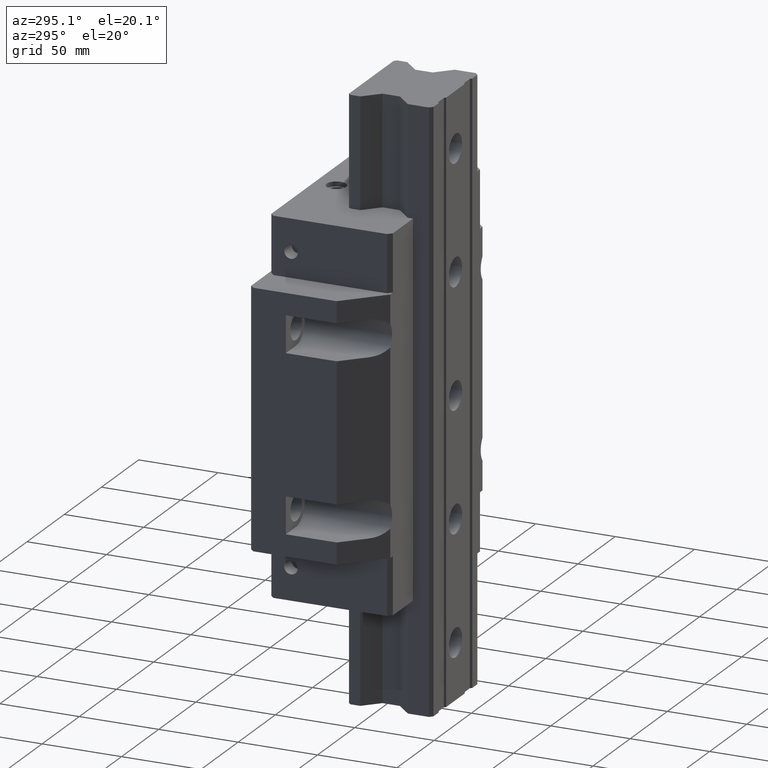
[diagram: clean part render]
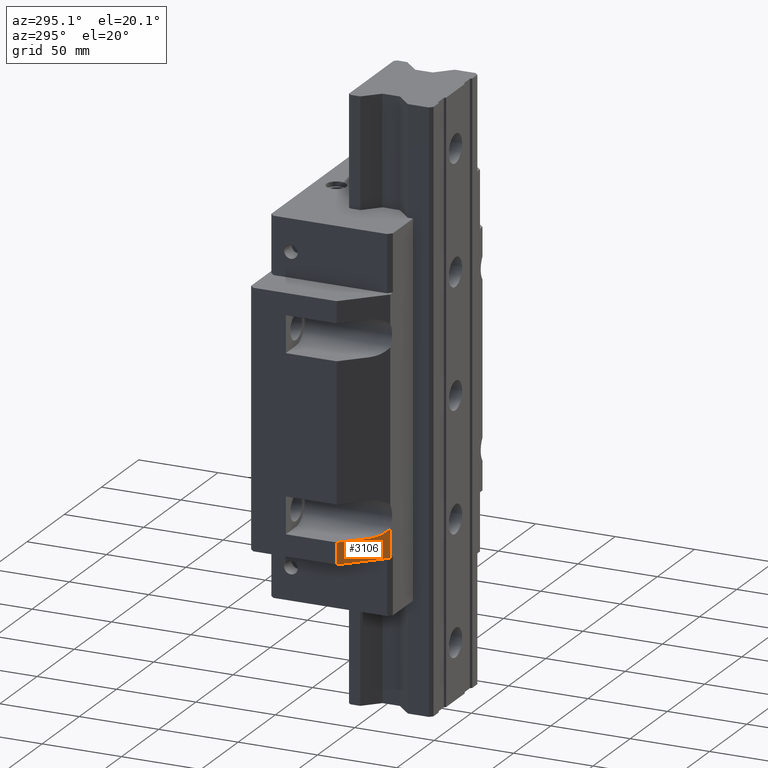
[diagram: same view with one face highlighted and labeled with its STEP entity id]
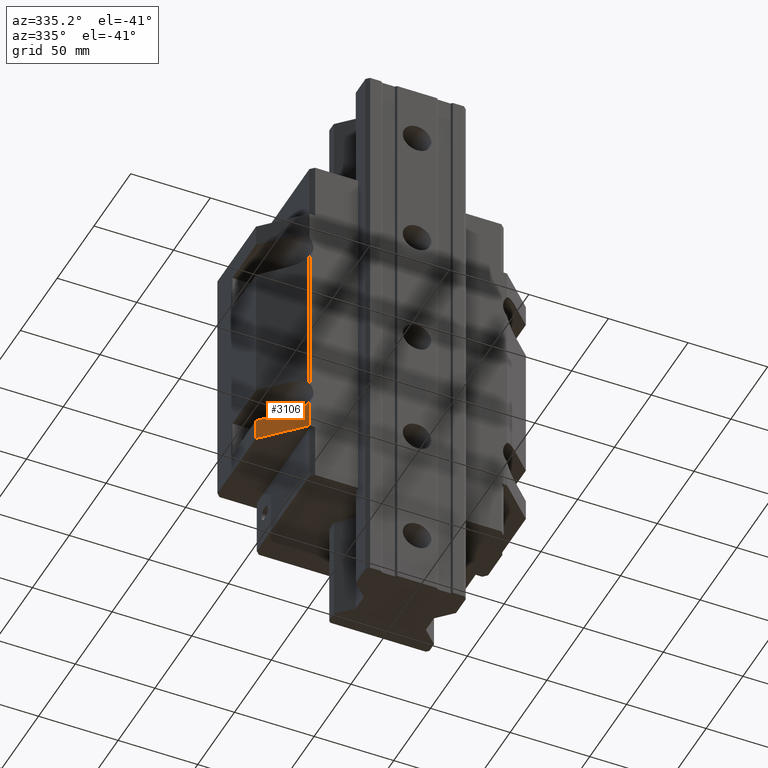
[diagram: same view with one face highlighted and labeled with its STEP entity id]
A machine part, auxiliary view. The second image highlights one B-rep face of the part: STEP entity #3106.
A second angle (auxiliary view) of the same face is appended — the face is thin or edge-on in the first view.
In plain terms, the highlighted planar face has unit normal (-0.7071, -0.7071, 0).
Its self-contained STEP definition (entity closure, byte-faithful):
#169=DIRECTION('',(7.071067811866E-1,-7.071067811865E-1,0.E0));
#170=VECTOR('',#169,3.252691193458E1);
#171=CARTESIAN_POINT('',(-8.500006E1,-5.4999992E1,-8.E1));
#172=LINE('',#171,#170);
#843=DIRECTION('',(-4.102115587443E-14,0.E0,1.E0));
#844=VECTOR('',#843,1.784101403854E1);
#845=CARTESIAN_POINT('',(-6.200006E1,-7.7999992E1,-8.E1));
#846=LINE('',#845,#844);
#881=DIRECTION('',(0.E0,-4.842217162217E-14,1.E0));
#882=VECTOR('',#881,1.35E1);
#883=CARTESIAN_POINT('',(-8.500006E1,-5.4999992E1,-8.E1));
#884=LINE('',#883,#882);
#891=CARTESIAN_POINT('',(-6.200006E1,-7.7999992E1,-6.215898596146E1));
#892=CARTESIAN_POINT('',(-6.326651662230E1,-7.673353537770E1,
-6.375111558354E1));
#893=CARTESIAN_POINT('',(-6.611164746775E1,-7.388840453225E1,
-6.577408161649E1));
#894=CARTESIAN_POINT('',(-6.930549395311E1,-7.069455804688E1,-6.65E1));
#895=CARTESIAN_POINT('',(-7.1E1,-6.9000052E1,-6.65E1));
#988=DIRECTION('',(-7.071067811866E-1,7.071067811865E-1,0.E0));
#989=VECTOR('',#988,1.979907472604E1);
#990=CARTESIAN_POINT('',(-7.1E1,-6.9000052E1,-6.65E1));
#991=LINE('',#990,#989);
#1651=CARTESIAN_POINT('',(-8.500006E1,-5.4999992E1,-8.E1));
#1652=VERTEX_POINT('',#1651);
#1653=CARTESIAN_POINT('',(-6.200006E1,-7.7999992E1,-8.E1));
#1654=VERTEX_POINT('',#1653);
#1719=CARTESIAN_POINT('',(-6.200006E1,-7.7999992E1,-6.215898596146E1));
#1720=VERTEX_POINT('',#1719);
#1957=VERTEX_POINT('',#895);
#1962=CARTESIAN_POINT('',(-8.500006E1,-5.4999992E1,-6.65E1));
#1963=VERTEX_POINT('',#1962);
#3091=CARTESIAN_POINT('',(-8.500006E1,-5.4999992E1,-8.E1));
#3092=DIRECTION('',(-7.071067811865E-1,-7.071067811866E-1,0.E0));
#3093=DIRECTION('',(7.071067811866E-1,-7.071067811865E-1,0.E0));
#3094=AXIS2_PLACEMENT_3D('',#3091,#3092,#3093);
#3095=PLANE('',#3094);
#3097=ORIENTED_EDGE('',*,*,#3096,.F.);
#3098=ORIENTED_EDGE('',*,*,#3063,.F.);
#3099=ORIENTED_EDGE('',*,*,#2232,.F.);
#3101=ORIENTED_EDGE('',*,*,#3100,.T.);
#3103=ORIENTED_EDGE('',*,*,#3102,.F.);
#3104=EDGE_LOOP('',(#3097,#3098,#3099,#3101,#3103));
#3105=FACE_OUTER_BOUND('',#3104,.F.);
#3106=ADVANCED_FACE('',(#3105),#3095,.T.);
#896=B_SPLINE_CURVE_WITH_KNOTS('',3,(#891,#892,#893,#894,#895),.UNSPECIFIED.,
.F.,.F.,(4,1,4),(0.E0,5.E-1,1.E0),.UNSPECIFIED.);
#2232=EDGE_CURVE('',#1652,#1654,#172,.T.);
#3063=EDGE_CURVE('',#1654,#1720,#846,.T.);
#3096=EDGE_CURVE('',#1720,#1957,#896,.T.);
#3100=EDGE_CURVE('',#1652,#1963,#884,.T.);
#3102=EDGE_CURVE('',#1957,#1963,#991,.T.);